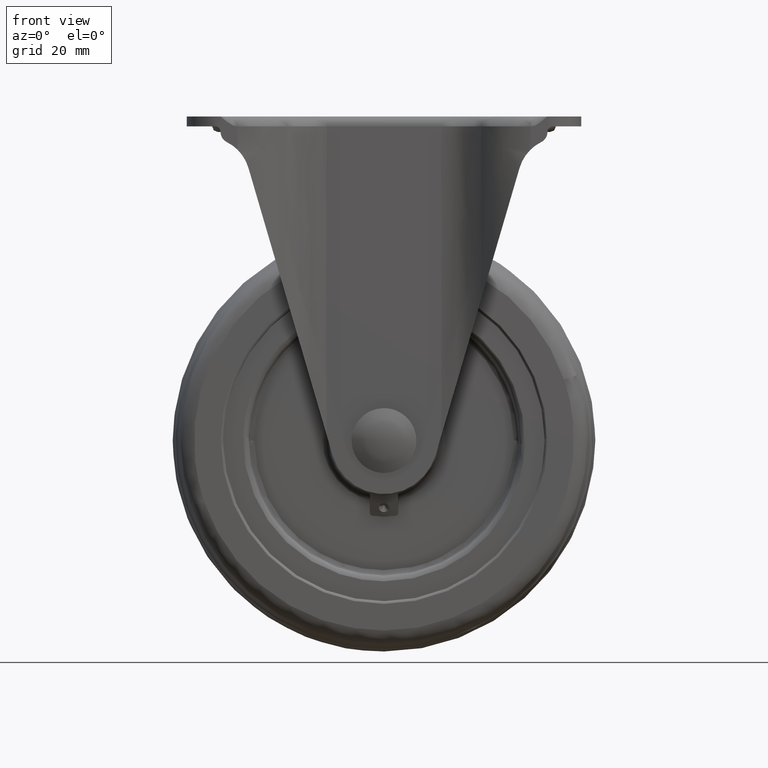
[diagram: clean part render]
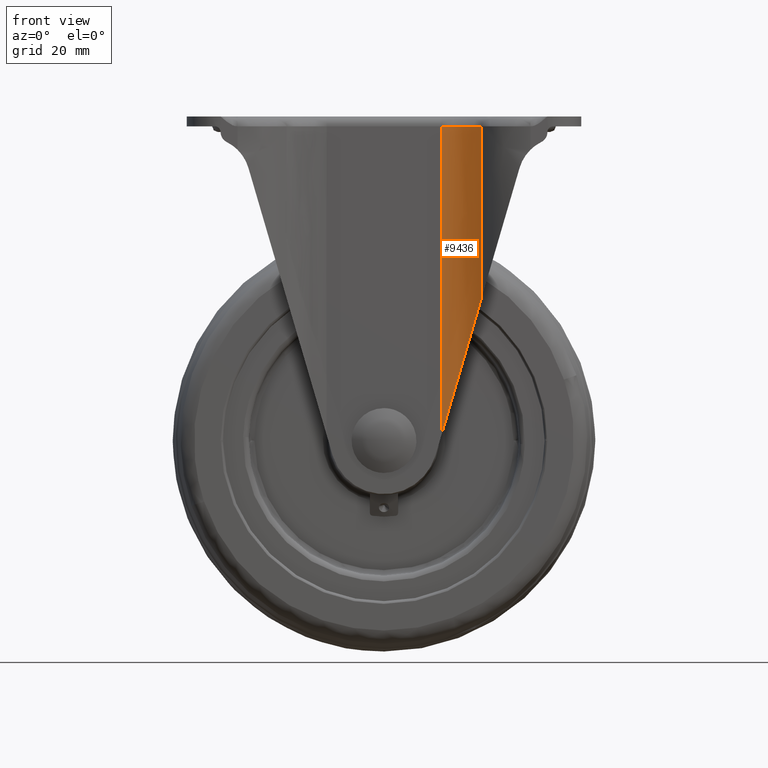
[diagram: same view with one face highlighted and labeled with its STEP entity id]
A machine part, front view. The second image highlights one B-rep face of the part: STEP entity #9436.
In plain terms, the highlighted face is a freeform B-spline surface patch.
Its self-contained STEP definition (entity closure, byte-faithful):
#8219=CARTESIAN_POINT('',(34.609643070861402,-38.475000000000001,50.614921688469899));
#8220=VERTEX_POINT('',#8219);
#8221=CARTESIAN_POINT('',(20.381172492475301,-31.500000000000000,1.996332771809105));
#8222=VERTEX_POINT('',#8221);
#8223=CARTESIAN_POINT('',(34.609643070861402,-38.475000000000001,50.614921688469899));
#8224=CARTESIAN_POINT('',(29.205030215505467,-31.500000000000004,32.147395665862447));
#8225=CARTESIAN_POINT('',(20.381172492475301,-31.500000000000000,1.996332771809109));
#8233=(BOUNDED_CURVE()B_SPLINE_CURVE(2,(#8223,#8224,#8225),.UNSPECIFIED.,.F.,.U.)CURVE()GEOMETRIC_REPRESENTATION_ITEM()QUASI_UNIFORM_CURVE()RATIONAL_B_SPLINE_CURVE((1.0,0.897914249803398,1.0))REPRESENTATION_ITEM(''));
#8234=EDGE_CURVE('',#8220,#8222,#8233,.T.);
#9373=CARTESIAN_POINT('',(20.381172492475301,-31.500000000000000,111.500000000000000));
#9374=VERTEX_POINT('',#9373);
#9375=CARTESIAN_POINT('',(20.381172492475301,-31.500000000000000,1.996332771809105));
#9376=CARTESIAN_POINT('',(20.381172492475301,-31.500000000000000,111.500000000000000));
#9377=QUASI_UNIFORM_CURVE('',1,(#9375,#9376),.UNSPECIFIED.,.F.,.U.);
#9378=EDGE_CURVE('',#8222,#9374,#9377,.T.);
#9398=CARTESIAN_POINT('',(19.668063822711829,-31.514131212946431,-0.741258908895670));
#9399=CARTESIAN_POINT('',(19.668063822711829,-31.514131212946431,114.306031472722400));
#9400=CARTESIAN_POINT('',(29.437277957356429,-31.126798725499093,-0.741258908895669));
#9401=CARTESIAN_POINT('',(29.437277957356429,-31.126798725499093,114.306031472722350));
#9402=CARTESIAN_POINT('',(35.080292052788863,-39.110780387747745,-0.741258908895670));
#9403=CARTESIAN_POINT('',(35.080292052788863,-39.110780387747745,114.306031472722440));
#9411=(BOUNDED_SURFACE()B_SPLINE_SURFACE(1,2,((#9398,#9400,#9402),(#9399,#9401,#9403)),.UNSPECIFIED.,.F.,.F.,.U.)B_SPLINE_SURFACE_WITH_KNOTS((2,2),(3,3),(0.0,115.047290381618100),(0.0,18.291638670166900),.UNSPECIFIED.)GEOMETRIC_REPRESENTATION_ITEM()RATIONAL_B_SPLINE_SURFACE(((1.0,0.874888927853371,0.991250560383727),(1.0,0.874888927853371,0.991250560383727)))REPRESENTATION_ITEM('')SURFACE());
#9412=CARTESIAN_POINT('',(34.609643070861402,-38.475000000000001,111.500000000000000));
#9413=VERTEX_POINT('',#9412);
#9414=CARTESIAN_POINT('',(34.609643070861402,-38.475000000000001,50.614921688469899));
#9415=CARTESIAN_POINT('',(34.609643070861402,-38.475000000000001,111.500000000000000));
#9416=QUASI_UNIFORM_CURVE('',1,(#9414,#9415),.UNSPECIFIED.,.F.,.U.);
#9417=EDGE_CURVE('',#8220,#9413,#9416,.T.);
#9418=ORIENTED_EDGE('',*,*,#9417,.T.);
#9419=CARTESIAN_POINT('',(34.609643070861416,-38.474999999999980,111.500000000000000));
#9420=CARTESIAN_POINT('',(29.205030215505449,-31.500000000000007,111.500000000000030));
#9421=CARTESIAN_POINT('',(20.381172492475301,-31.500000000000000,111.500000000000000));
#9429=(BOUNDED_CURVE()B_SPLINE_CURVE(2,(#9419,#9420,#9421),.UNSPECIFIED.,.F.,.U.)CURVE()GEOMETRIC_REPRESENTATION_ITEM()QUASI_UNIFORM_CURVE()RATIONAL_B_SPLINE_CURVE((1.0,0.897914249803399,1.0))REPRESENTATION_ITEM(''));
#9430=EDGE_CURVE('',#9413,#9374,#9429,.T.);
#9431=ORIENTED_EDGE('',*,*,#9430,.T.);
#9432=ORIENTED_EDGE('',*,*,#9378,.F.);
#9433=ORIENTED_EDGE('',*,*,#8234,.F.);
#9434=EDGE_LOOP('',(#9418,#9431,#9432,#9433));
#9435=FACE_OUTER_BOUND('',#9434,.T.);
#9436=ADVANCED_FACE('',(#9435),#9411,.F.);